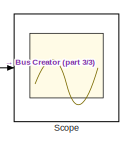
[diagram: root canvas - part 1/3, top right region]
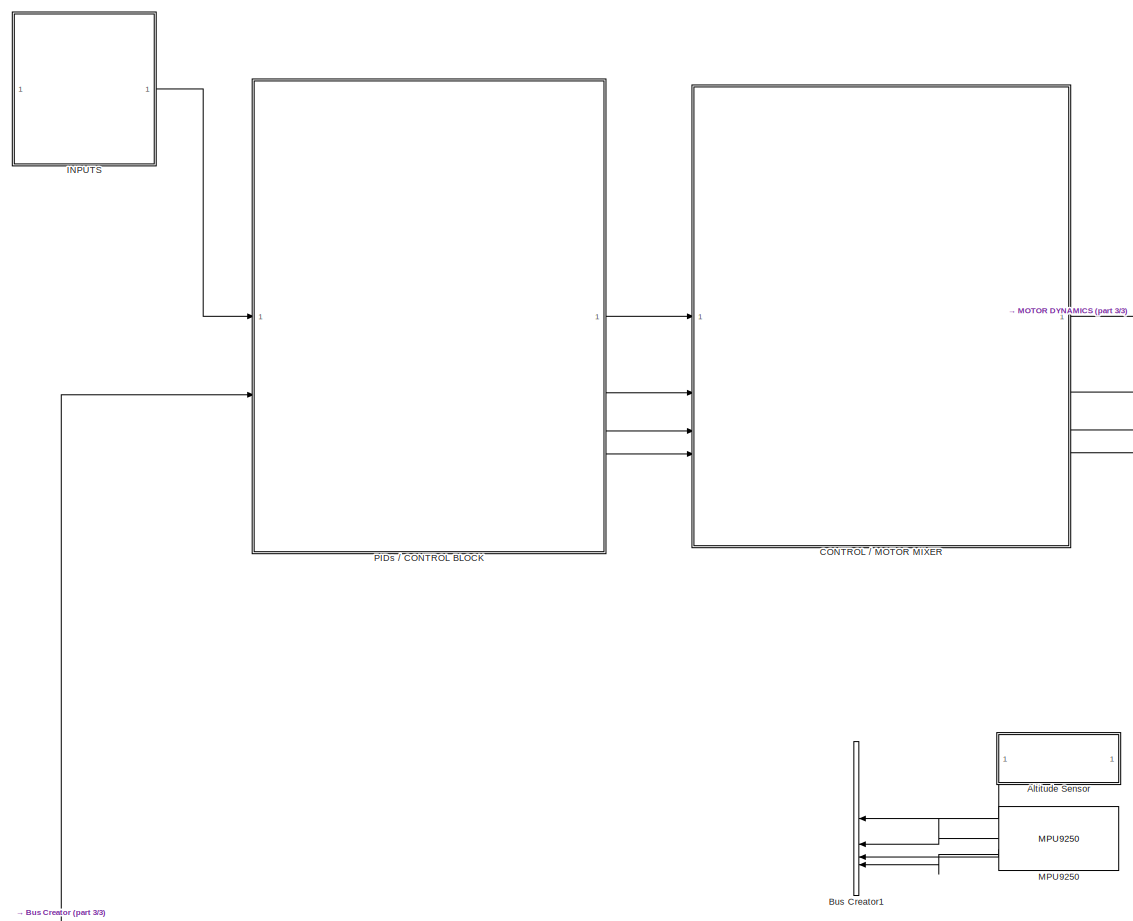
[diagram: root canvas - part 2/3, left side, full height]
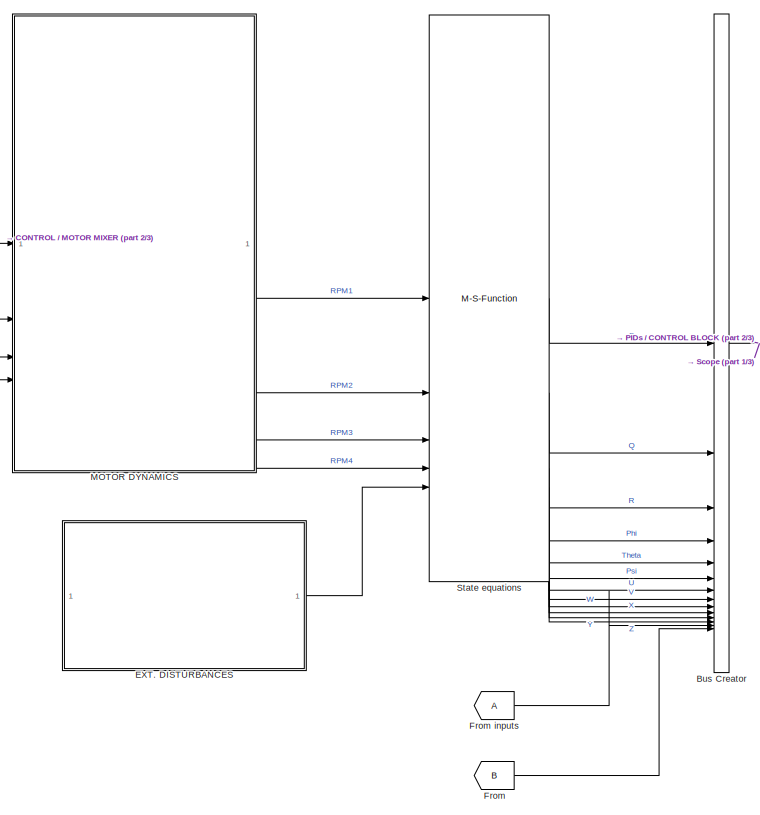
[diagram: root canvas - part 3/3, central region]
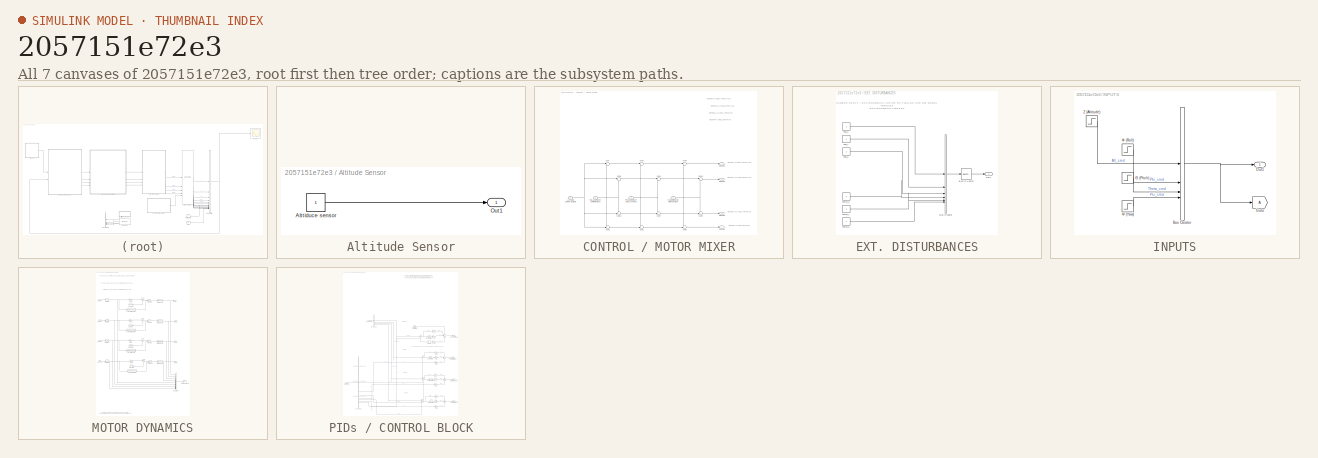
[diagram: thumbnail index - all 7 canvases of the model, root first then tree order]
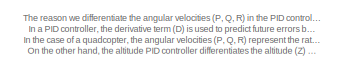
[diagram: PIDs / CONTROL BLOCK - part 1/4, top center region]
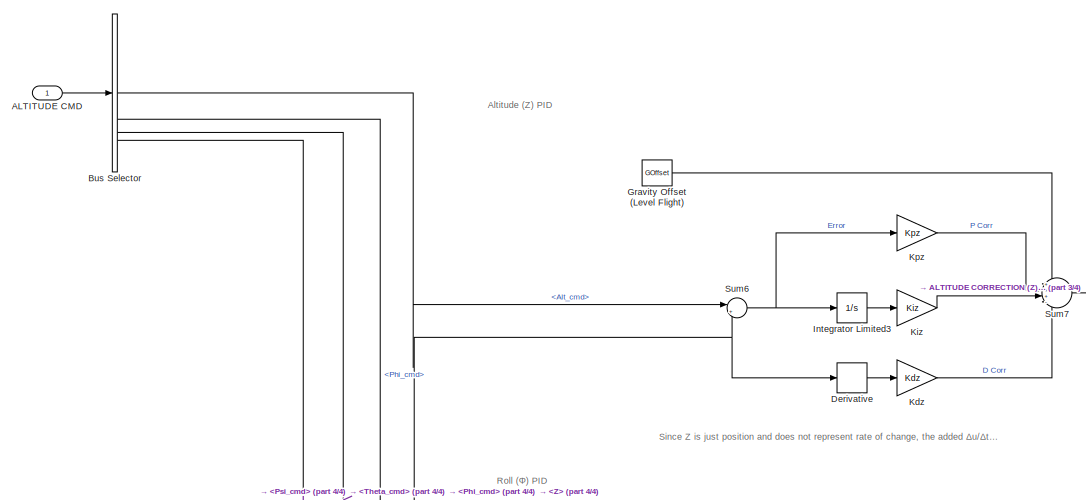
[diagram: PIDs / CONTROL BLOCK - part 2/4, central region]
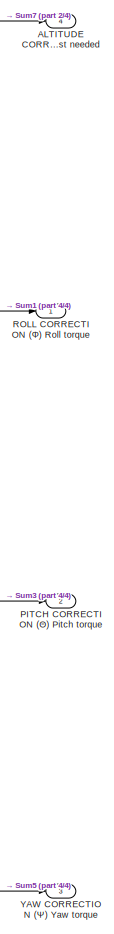
[diagram: PIDs / CONTROL BLOCK - part 3/4, bottom right region]
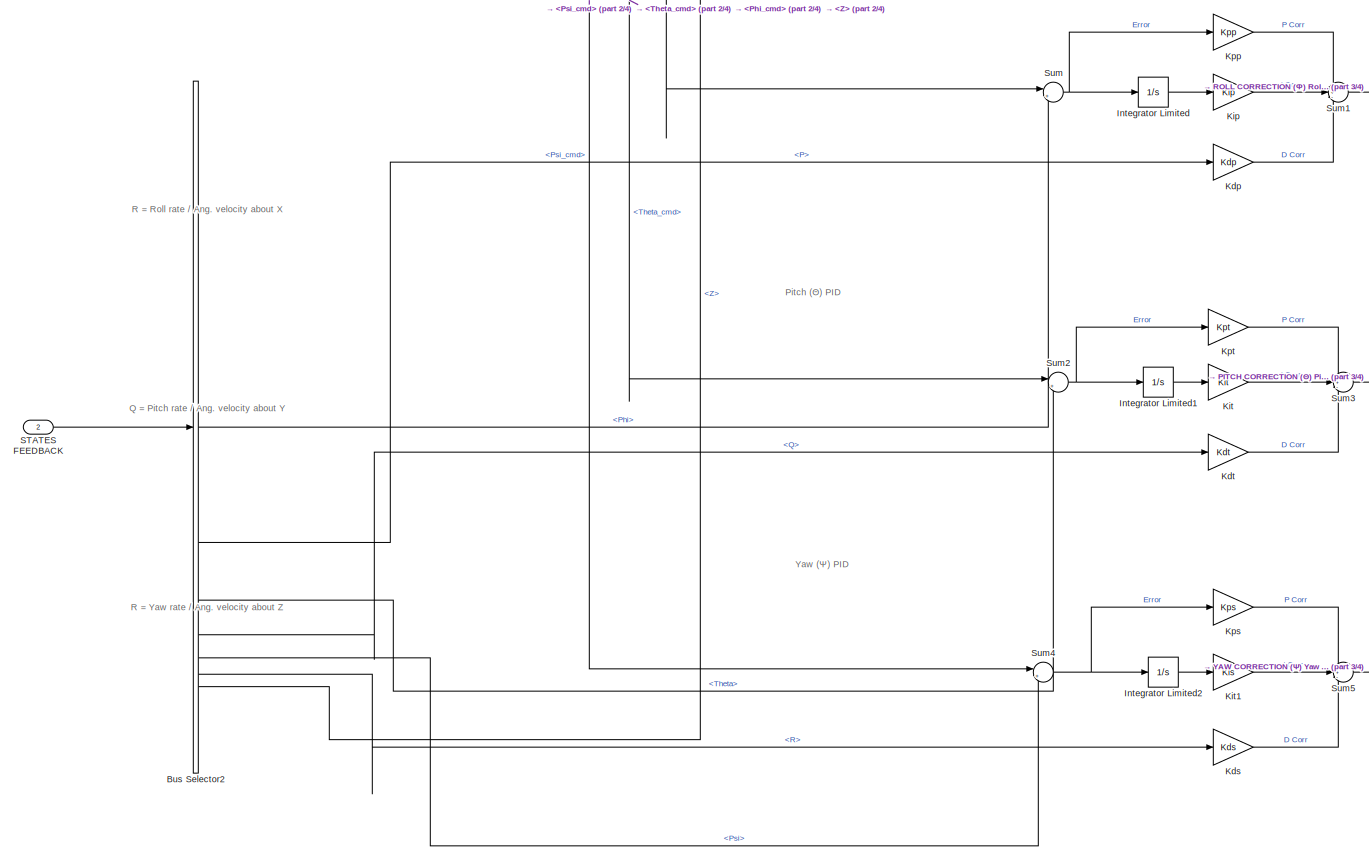
[diagram: PIDs / CONTROL BLOCK - part 4/4, full width, bottom band]
MODEL slx_2057151e72e3
KIND model
CONFIG AbsTol = auto
CONFIG EnableMultiTasking = off
CONFIG FixedStep = auto
CONFIG MaxStep = auto
CONFIG MinStep = auto
CONFIG RelTol = 1e-3
CONFIG SampleTimeConstraint = Unconstrained
CONFIG SolverName = VariableStepAuto
CONFIG StartTime = 0.0
CONFIG StopTime = 10.0
BLOCK [SubSystem] Altitude Sensor
BLOCK [Constant] Altitude Sensor/Alttiduce sensor
BLOCK [Outport] Altitude Sensor/Out1
BLOCK [BusCreator] Bus Creator
  DisplayOption = bar
  InheritFromInputs = on
  Inputs = 14
BLOCK [BusCreator] Bus Creator1
  DisplayOption = bar
  InheritFromInputs = on
  Inputs = 4
BLOCK [SubSystem] CONTROL // MOTOR MIXER
BLOCK [Inport] CONTROL // MOTOR MIXER/ALTITUDE CORRECTION (Z) Thrust CMD
  Port = 4
BLOCK [Outport] CONTROL // MOTOR MIXER/MOTOR1
BLOCK [Outport] CONTROL // MOTOR MIXER/MOTOR2
  Port = 2
BLOCK [Outport] CONTROL // MOTOR MIXER/MOTOR3
  Port = 3
BLOCK [Outport] CONTROL // MOTOR MIXER/MOTOR4
  Port = 4
BLOCK [Inport] CONTROL // MOTOR MIXER/PITCH CORRECTION (θ) Pitch Torque
  Port = 2
BLOCK [Inport] CONTROL // MOTOR MIXER/ROLL CORRECTION (Φ) Roll Torque
BLOCK [Sum] CONTROL // MOTOR MIXER/Sum
  Inputs = |+-
BLOCK [Sum] CONTROL // MOTOR MIXER/Sum1
  Inputs = |++
BLOCK [Sum] CONTROL // MOTOR MIXER/Sum10
  Inputs = ++|
BLOCK [Sum] CONTROL // MOTOR MIXER/Sum11
  Inputs = |++
BLOCK [Sum] CONTROL // MOTOR MIXER/Sum2
  Inputs = -+|
BLOCK [Sum] CONTROL // MOTOR MIXER/Sum3
  Inputs = -+|
BLOCK [Sum] CONTROL // MOTOR MIXER/Sum4
  Inputs = |++
BLOCK [Sum] CONTROL // MOTOR MIXER/Sum5
  Inputs = -+|
BLOCK [Sum] CONTROL // MOTOR MIXER/Sum6
  Inputs = |+-
BLOCK [Sum] CONTROL // MOTOR MIXER/Sum7
  Inputs = ++|
BLOCK [Sum] CONTROL // MOTOR MIXER/Sum8
  Inputs = |++
BLOCK [Sum] CONTROL // MOTOR MIXER/Sum9
  Inputs = -+|
BLOCK [Inport] CONTROL // MOTOR MIXER/YAW CORRECTION (ψ) Yaw Torque
  Port = 3
BLOCK [SubSystem] EXT. DISTURBANCES
BLOCK [BusCreator] EXT. DISTURBANCES/Bus Creator
  DisplayOption = bar
  InheritFromInputs = on
  Inputs = 6
BLOCK [BusToVector] EXT. DISTURBANCES/Bus to Vector
BLOCK [Constant] EXT. DISTURBANCES/Force_x
BLOCK [Constant] EXT. DISTURBANCES/Force_y
BLOCK [Constant] EXT. DISTURBANCES/Force_z
BLOCK [Outport] EXT. DISTURBANCES/Out1
BLOCK [Constant] EXT. DISTURBANCES/Tau_x
BLOCK [Constant] EXT. DISTURBANCES/Tau_y
BLOCK [Constant] EXT. DISTURBANCES/Tau_z
BLOCK [From] From
  GotoTag = B
  TagVisibility = global
BLOCK [From] From inputs
  IconDisplay = Tag and signal name
  TagVisibility = global
BLOCK [SubSystem] INPUTS
BLOCK [BusCreator] INPUTS/Bus Creator
  DisplayOption = bar
  InheritFromInputs = on
  Inputs = 4
BLOCK [Goto] INPUTS/Goto
  TagVisibility = global
BLOCK [Outport] INPUTS/Out1
BLOCK [Step] INPUTS/Z (Altitude)
  SampleTime = 0
BLOCK [Step] INPUTS/Θ (Pitch)
  SampleTime = 0
BLOCK [Step] INPUTS/Φ (Roll)
  SampleTime = 0
BLOCK [Step] INPUTS/Ψ (Yaw)
  SampleTime = 0
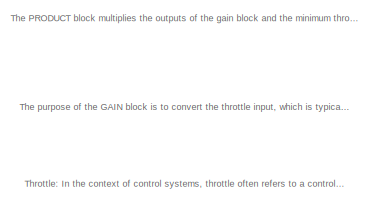
[diagram: MOTOR DYNAMICS - part 1/4, top left region]
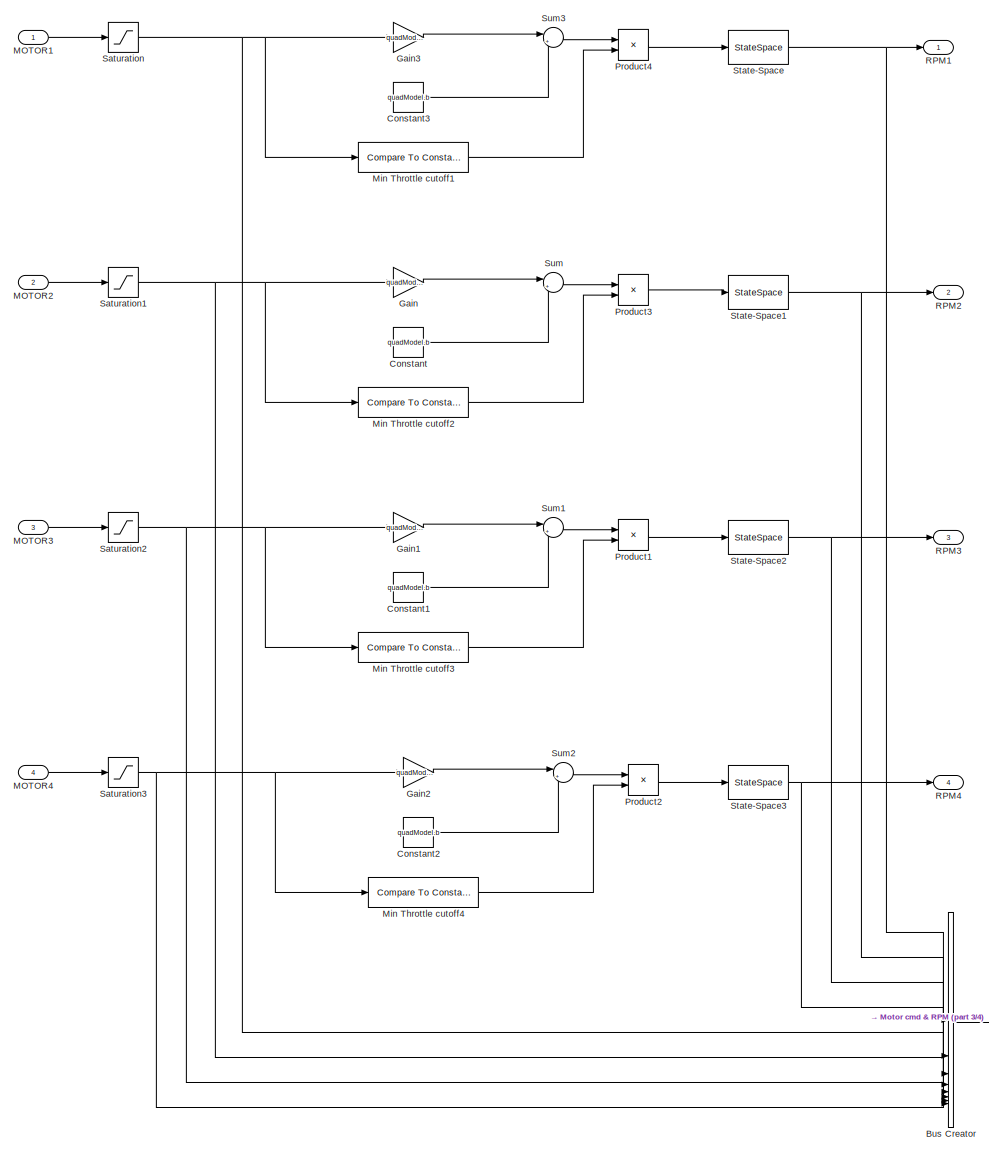
[diagram: MOTOR DYNAMICS - part 2/4, full width, middle band]
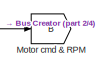
[diagram: MOTOR DYNAMICS - part 3/4, bottom right region]
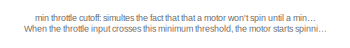
[diagram: MOTOR DYNAMICS - part 4/4, bottom left region]
BLOCK [SubSystem] MOTOR DYNAMICS
BLOCK [BusCreator] MOTOR DYNAMICS/Bus Creator
  DisplayOption = bar
  InheritFromInputs = on
  Inputs = 8
BLOCK [Constant] MOTOR DYNAMICS/Constant
  Value = quadModel.b
BLOCK [Constant] MOTOR DYNAMICS/Constant1
  Value = quadModel.b
BLOCK [Constant] MOTOR DYNAMICS/Constant2
  Value = quadModel.b
BLOCK [Constant] MOTOR DYNAMICS/Constant3
  Value = quadModel.b
BLOCK [Gain] MOTOR DYNAMICS/Gain
  Gain = quadModel.cr
BLOCK [Gain] MOTOR DYNAMICS/Gain1
  Gain = quadModel.cr
BLOCK [Gain] MOTOR DYNAMICS/Gain2
  Gain = quadModel.cr
BLOCK [Gain] MOTOR DYNAMICS/Gain3
  Gain = quadModel.cr
BLOCK [Inport] MOTOR DYNAMICS/MOTOR1
BLOCK [Inport] MOTOR DYNAMICS/MOTOR2
  Port = 2
BLOCK [Inport] MOTOR DYNAMICS/MOTOR3
  Port = 3
BLOCK [Inport] MOTOR DYNAMICS/MOTOR4
  Port = 4
BLOCK [Reference] MOTOR DYNAMICS/Min Throttle cutoff1  REF=simulink/Logic and Bit
Operations/Compare
To Constant
  SourceBlock = simulink/Logic and Bit\nOperations/Compare\nTo Constant
  SourceType = Compare To Constant
BLOCK [Reference] MOTOR DYNAMICS/Min Throttle cutoff2  REF=simulink/Logic and Bit
Operations/Compare
To Constant
  SourceBlock = simulink/Logic and Bit\nOperations/Compare\nTo Constant
  SourceType = Compare To Constant
BLOCK [Reference] MOTOR DYNAMICS/Min Throttle cutoff3  REF=simulink/Logic and Bit
Operations/Compare
To Constant
  SourceBlock = simulink/Logic and Bit\nOperations/Compare\nTo Constant
  SourceType = Compare To Constant
BLOCK [Reference] MOTOR DYNAMICS/Min Throttle cutoff4  REF=simulink/Logic and Bit
Operations/Compare
To Constant
  SourceBlock = simulink/Logic and Bit\nOperations/Compare\nTo Constant
  SourceType = Compare To Constant
BLOCK [Goto] MOTOR DYNAMICS/Motor cmd & RPM
  GotoTag = B
  TagVisibility = global
BLOCK [Product] MOTOR DYNAMICS/Product1
BLOCK [Product] MOTOR DYNAMICS/Product2
BLOCK [Product] MOTOR DYNAMICS/Product3
BLOCK [Product] MOTOR DYNAMICS/Product4
BLOCK [Outport] MOTOR DYNAMICS/RPM1
BLOCK [Outport] MOTOR DYNAMICS/RPM2
  Port = 2
BLOCK [Outport] MOTOR DYNAMICS/RPM3
  Port = 3
BLOCK [Outport] MOTOR DYNAMICS/RPM4
  Port = 4
BLOCK [Saturate] MOTOR DYNAMICS/Saturation
BLOCK [Saturate] MOTOR DYNAMICS/Saturation1
BLOCK [Saturate] MOTOR DYNAMICS/Saturation2
BLOCK [Saturate] MOTOR DYNAMICS/Saturation3
BLOCK [StateSpace] MOTOR DYNAMICS/State-Space
  InitialCondition = 0
BLOCK [StateSpace] MOTOR DYNAMICS/State-Space1
  InitialCondition = 0
BLOCK [StateSpace] MOTOR DYNAMICS/State-Space2
  InitialCondition = 0
BLOCK [StateSpace] MOTOR DYNAMICS/State-Space3
  InitialCondition = 0
BLOCK [Sum] MOTOR DYNAMICS/Sum
  Inputs = |++
  NameLocation = top
BLOCK [Sum] MOTOR DYNAMICS/Sum1
  Inputs = |++
  NameLocation = top
BLOCK [Sum] MOTOR DYNAMICS/Sum2
  Inputs = |++
  NameLocation = top
BLOCK [Sum] MOTOR DYNAMICS/Sum3
  Inputs = |++
  NameLocation = top
BLOCK [Reference] MPU9250  REF=bbblueSensorLib/MPU9250
  SourceBlock = bbblueSensorLib/MPU9250
  SourceType = beagleboneblue.bbblueMPU9250
BLOCK [SubSystem] PIDs // CONTROL BLOCK
BLOCK [Inport] PIDs // CONTROL BLOCK/ALTITUDE CMD
BLOCK [Outport] PIDs // CONTROL BLOCK/ALTITUDE CORRECTION (Ζ) Total thrust needed
  Port = 4
BLOCK [BusSelector] PIDs // CONTROL BLOCK/Bus Selector
  OutputSignals = Alt_cmd,Phi_cmd,Theta_cmd,Psi_cmd
BLOCK [BusSelector] PIDs // CONTROL BLOCK/Bus Selector2
  OutputSignals = Phi,P,Theta,Q,Psi,R,Z
BLOCK [Derivative] PIDs // CONTROL BLOCK/Derivative
BLOCK [Constant] PIDs // CONTROL BLOCK/Gravity Offset (Level Flight)
  Value = GOffset
BLOCK [Integrator] PIDs // CONTROL BLOCK/Integrator Limited
  LimitOutput = on
  LowerSaturationLimit = LSat
  UpperSaturationLimit = USat
BLOCK [Integrator] PIDs // CONTROL BLOCK/Integrator Limited1
  LimitOutput = on
  LowerSaturationLimit = 0
  UpperSaturationLimit = 1
BLOCK [Integrator] PIDs // CONTROL BLOCK/Integrator Limited2
  LimitOutput = on
  LowerSaturationLimit = LSat
  UpperSaturationLimit = USat
BLOCK [Integrator] PIDs // CONTROL BLOCK/Integrator Limited3
  LimitOutput = on
  LowerSaturationLimit = LSat
  UpperSaturationLimit = USat
BLOCK [Gain] PIDs // CONTROL BLOCK/Kdp
  Gain = Kdp
BLOCK [Gain] PIDs // CONTROL BLOCK/Kds
  Gain = Kds
BLOCK [Gain] PIDs // CONTROL BLOCK/Kdt
  Gain = Kdt
BLOCK [Gain] PIDs // CONTROL BLOCK/Kdz
  Gain = Kdz
BLOCK [Gain] PIDs // CONTROL BLOCK/Kip
  Gain = Kip
BLOCK [Gain] PIDs // CONTROL BLOCK/Kit
  Gain = Kit
BLOCK [Gain] PIDs // CONTROL BLOCK/Kit1
  Gain = Kis
BLOCK [Gain] PIDs // CONTROL BLOCK/Kiz
  Gain = Kiz
BLOCK [Gain] PIDs // CONTROL BLOCK/Kpp
  Gain = Kpp
BLOCK [Gain] PIDs // CONTROL BLOCK/Kps
  Gain = Kps
BLOCK [Gain] PIDs // CONTROL BLOCK/Kpt
  Gain = Kpt
BLOCK [Gain] PIDs // CONTROL BLOCK/Kpz
  Gain = Kpz
BLOCK [Outport] PIDs // CONTROL BLOCK/PITCH CORRECTION (Θ) Pitch torque
  Port = 2
BLOCK [Outport] PIDs // CONTROL BLOCK/ROLL CORRECTION (Φ) Roll torque
BLOCK [Inport] PIDs // CONTROL BLOCK/STATES FEEDBACK
  NameLocation = top
  Port = 2
BLOCK [Sum] PIDs // CONTROL BLOCK/Sum
  Inputs = |+-
BLOCK [Sum] PIDs // CONTROL BLOCK/Sum1
  Inputs = ++-
BLOCK [Sum] PIDs // CONTROL BLOCK/Sum2
  Inputs = |+-
BLOCK [Sum] PIDs // CONTROL BLOCK/Sum3
  Inputs = ++-
BLOCK [Sum] PIDs // CONTROL BLOCK/Sum4
  Inputs = |+-
BLOCK [Sum] PIDs // CONTROL BLOCK/Sum5
  Inputs = ++-
BLOCK [Sum] PIDs // CONTROL BLOCK/Sum6
  Inputs = |+-
BLOCK [Sum] PIDs // CONTROL BLOCK/Sum7
  Inputs = +++-
BLOCK [Outport] PIDs // CONTROL BLOCK/YAW CORRECTION (Ψ) Yaw torque
  Port = 3
BLOCK [Scope] Scope
  Floating = off
  NumInputPorts = 1
  ScopeSpecificationString = Simulink.scopes.TimeScopeBlockCfg('CurrentConfiguration', extmgr.ConfigurationSet(extmgr.Configuration('Core','General UI',true),extmgr.Configuration('Core','Source UI',true),extmgr.Configuration('Sources','WiredSimulink',true),extmgr.Configuration('Visuals','Time Domain',true),extmgr.Configuration('Tools','Plot Navigation',true),extmgr.Configuration('Tools','Measurements',true,'Version','2023b'))...<+19ch>
BLOCK [M-S-Function] State equations
  FunctionName = SirvDynamicsSFunction
  Parameters = quadModel, IC
ANNOTATION CONTROL // MOTOR MIXER: MOTOR1 = ALT. - ROLL + PITCH + YAW
ANNOTATION CONTROL // MOTOR MIXER: MOTOR2 = ALT. + ROLL - PITCH + YAW
ANNOTATION CONTROL // MOTOR MIXER: MOTOR3 = ALT. + ROLL + PITCH - YAW
ANNOTATION CONTROL // MOTOR MIXER: MOTOR4 = ALT. - ROLL - PITCH - YAW
ANNOTATION EXT. DISTURBANCES: NUMBER OF EXT. / ENVIRONMENTAL INPUTS THAT WILL GO INTO THE MODEL -TORQUES -ENVIRONMENTAL FORCES
ANNOTATION MOTOR DYNAMICS: The PRODUCT block multiplies the outputs of the gain block and the minimum throttle cutoff block. If the throttle input is greater than or equal to the throttle cutoff (minThr), the output equals the linearly scaled RPM for the given throttle input. Otherwise, the output is zero
ANNOTATION MOTOR DYNAMICS: Throttle : In the context of control systems, throttle often refers to a control input that determines the amount of power or thrust produced by the engine
ANNOTATION MOTOR DYNAMICS: min throttle cutoff: simultes the fact that that a motor won't spin until a minimum throttle point is reached. When the throttle input crosses this minimum threshold, the motor starts spinning, causing a sudden jump (jump discontinuity) in the RPM from zero to some positive value. This is an important aspect of accurately modeling the motor’s behavior. Ignoring this discontinuity could lead to unr...<+151ch>
ANNOTATION MOTOR DYNAMICS: The purpose of the GAIN block is to convert the throttle input, which is typically a dimensionless value ranging from 0 to 1, into an actual RPM value that the motors can understand
ANNOTATION PIDs // CONTROL BLOCK: The reason we differentiate the angular velocities (P, Q, R) in the PID controllers for roll, pitch, and yaw is related to the nature of these control systems. In a PID controller, the derivative term (D) is used to predict future errors based on the current rate of change of the error. This helps to apply corrections before the system can deviate significantly from the setpoint, and it adds a “da...<+854ch>
ANNOTATION PIDs // CONTROL BLOCK: Altitude (Z) PID
ANNOTATION PIDs // CONTROL BLOCK: Pitch (Θ) PID
ANNOTATION PIDs // CONTROL BLOCK: Q = Pitch rate / Ang. velocity about Y
ANNOTATION PIDs // CONTROL BLOCK: R = Roll rate / Ang. velocity about X
ANNOTATION PIDs // CONTROL BLOCK: R = Yaw rate / Ang. velocity about Z
ANNOTATION PIDs // CONTROL BLOCK: Roll (Φ) PID
ANNOTATION PIDs // CONTROL BLOCK: Since Z is just position and does not represent rate of change, the added Δu/Δt is to turn Z into linear velocity, i.e. linear rate of change
ANNOTATION PIDs // CONTROL BLOCK: Yaw (Ψ) PID
LINE Altitude Sensor/Alttiduce sensor:1 -> Altitude Sensor/Out1:1
LINE Altitude Sensor:1 -> Bus Creator1:1
NET Bus Creator:1 -> PIDs // CONTROL BLOCK:2, Scope:1
NET CONTROL // MOTOR MIXER/ALTITUDE CORRECTION (Z) Thrust CMD:1 -> CONTROL // MOTOR MIXER/Sum10:2, CONTROL // MOTOR MIXER/Sum3:2, CONTROL // MOTOR MIXER/Sum8:1, CONTROL // MOTOR MIXER/Sum:1
NET CONTROL // MOTOR MIXER/PITCH CORRECTION (θ) Pitch Torque:1 -> CONTROL // MOTOR MIXER/Sum1:2, CONTROL // MOTOR MIXER/Sum2:1, CONTROL // MOTOR MIXER/Sum6:2, CONTROL // MOTOR MIXER/Sum7:1
NET CONTROL // MOTOR MIXER/ROLL CORRECTION (Φ) Roll Torque:1 -> CONTROL // MOTOR MIXER/Sum10:1, CONTROL // MOTOR MIXER/Sum3:1, CONTROL // MOTOR MIXER/Sum8:2, CONTROL // MOTOR MIXER/Sum:2
LINE CONTROL // MOTOR MIXER/Sum10:1 -> CONTROL // MOTOR MIXER/Sum7:2
LINE CONTROL // MOTOR MIXER/Sum11:1 -> CONTROL // MOTOR MIXER/MOTOR2:1
LINE CONTROL // MOTOR MIXER/Sum1:1 -> CONTROL // MOTOR MIXER/Sum4:1
LINE CONTROL // MOTOR MIXER/Sum2:1 -> CONTROL // MOTOR MIXER/Sum5:2
LINE CONTROL // MOTOR MIXER/Sum3:1 -> CONTROL // MOTOR MIXER/Sum2:2
LINE CONTROL // MOTOR MIXER/Sum4:1 -> CONTROL // MOTOR MIXER/MOTOR1:1
LINE CONTROL // MOTOR MIXER/Sum5:1 -> CONTROL // MOTOR MIXER/MOTOR4:1
LINE CONTROL // MOTOR MIXER/Sum6:1 -> CONTROL // MOTOR MIXER/Sum11:1
LINE CONTROL // MOTOR MIXER/Sum7:1 -> CONTROL // MOTOR MIXER/Sum9:2
LINE CONTROL // MOTOR MIXER/Sum8:1 -> CONTROL // MOTOR MIXER/Sum6:1
LINE CONTROL // MOTOR MIXER/Sum9:1 -> CONTROL // MOTOR MIXER/MOTOR3:1
LINE CONTROL // MOTOR MIXER/Sum:1 -> CONTROL // MOTOR MIXER/Sum1:1
NET CONTROL // MOTOR MIXER/YAW CORRECTION (ψ) Yaw Torque:1 -> CONTROL // MOTOR MIXER/Sum11:2, CONTROL // MOTOR MIXER/Sum4:2, CONTROL // MOTOR MIXER/Sum5:1, CONTROL // MOTOR MIXER/Sum9:1
LINE CONTROL // MOTOR MIXER:1 -> MOTOR DYNAMICS:1
LINE CONTROL // MOTOR MIXER:2 -> MOTOR DYNAMICS:2
LINE CONTROL // MOTOR MIXER:3 -> MOTOR DYNAMICS:3
LINE CONTROL // MOTOR MIXER:4 -> MOTOR DYNAMICS:4
LINE EXT. DISTURBANCES/Bus Creator:1 -> EXT. DISTURBANCES/Bus to Vector:1
LINE EXT. DISTURBANCES/Bus to Vector:1 -> EXT. DISTURBANCES/Out1:1
LINE EXT. DISTURBANCES/Force_x:1 -> EXT. DISTURBANCES/Bus Creator:4
LINE EXT. DISTURBANCES/Force_y:1 -> EXT. DISTURBANCES/Bus Creator:5
LINE EXT. DISTURBANCES/Force_z:1 -> EXT. DISTURBANCES/Bus Creator:6
LINE EXT. DISTURBANCES/Tau_x:1 -> EXT. DISTURBANCES/Bus Creator:1
LINE EXT. DISTURBANCES/Tau_y:1 -> EXT. DISTURBANCES/Bus Creator:2
LINE EXT. DISTURBANCES/Tau_z:1 -> EXT. DISTURBANCES/Bus Creator:3
LINE EXT. DISTURBANCES:1 -> State equations:5
LINE From inputs:1 -> Bus Creator:13
LINE From:1 -> Bus Creator:14
NET INPUTS/Bus Creator:1 -> INPUTS/Goto:1, INPUTS/Out1:1
LINE INPUTS/Z (Altitude):1 -> INPUTS/Bus Creator:1
LINE INPUTS/Θ (Pitch):1 -> INPUTS/Bus Creator:3
LINE INPUTS/Φ (Roll):1 -> INPUTS/Bus Creator:2
LINE INPUTS/Ψ (Yaw):1 -> INPUTS/Bus Creator:4
LINE INPUTS:1 -> PIDs // CONTROL BLOCK:1
LINE MOTOR DYNAMICS/Bus Creator:1 -> MOTOR DYNAMICS/Motor cmd & RPM:1
LINE MOTOR DYNAMICS/Constant1:1 -> MOTOR DYNAMICS/Sum1:2
LINE MOTOR DYNAMICS/Constant2:1 -> MOTOR DYNAMICS/Sum2:2
LINE MOTOR DYNAMICS/Constant3:1 -> MOTOR DYNAMICS/Sum3:2
LINE MOTOR DYNAMICS/Constant:1 -> MOTOR DYNAMICS/Sum:2
LINE MOTOR DYNAMICS/Gain1:1 -> MOTOR DYNAMICS/Sum1:1
LINE MOTOR DYNAMICS/Gain2:1 -> MOTOR DYNAMICS/Sum2:1
LINE MOTOR DYNAMICS/Gain3:1 -> MOTOR DYNAMICS/Sum3:1
LINE MOTOR DYNAMICS/Gain:1 -> MOTOR DYNAMICS/Sum:1
LINE MOTOR DYNAMICS/MOTOR1:1 -> MOTOR DYNAMICS/Saturation:1
LINE MOTOR DYNAMICS/MOTOR2:1 -> MOTOR DYNAMICS/Saturation1:1
LINE MOTOR DYNAMICS/MOTOR3:1 -> MOTOR DYNAMICS/Saturation2:1
LINE MOTOR DYNAMICS/MOTOR4:1 -> MOTOR DYNAMICS/Saturation3:1
LINE MOTOR DYNAMICS/Min Throttle cutoff1:1 -> MOTOR DYNAMICS/Product4:2
LINE MOTOR DYNAMICS/Min Throttle cutoff2:1 -> MOTOR DYNAMICS/Product3:2
LINE MOTOR DYNAMICS/Min Throttle cutoff3:1 -> MOTOR DYNAMICS/Product1:2
LINE MOTOR DYNAMICS/Min Throttle cutoff4:1 -> MOTOR DYNAMICS/Product2:2
LINE MOTOR DYNAMICS/Product1:1 -> MOTOR DYNAMICS/State-Space2:1
LINE MOTOR DYNAMICS/Product2:1 -> MOTOR DYNAMICS/State-Space3:1
LINE MOTOR DYNAMICS/Product3:1 -> MOTOR DYNAMICS/State-Space1:1
LINE MOTOR DYNAMICS/Product4:1 -> MOTOR DYNAMICS/State-Space:1
NET MOTOR DYNAMICS/Saturation1:1 -> MOTOR DYNAMICS/Bus Creator:6, MOTOR DYNAMICS/Gain:1, MOTOR DYNAMICS/Min Throttle cutoff2:1
NET MOTOR DYNAMICS/Saturation2:1 -> MOTOR DYNAMICS/Bus Creator:7, MOTOR DYNAMICS/Gain1:1, MOTOR DYNAMICS/Min Throttle cutoff3:1
NET MOTOR DYNAMICS/Saturation3:1 -> MOTOR DYNAMICS/Bus Creator:8, MOTOR DYNAMICS/Gain2:1, MOTOR DYNAMICS/Min Throttle cutoff4:1
NET MOTOR DYNAMICS/Saturation:1 -> MOTOR DYNAMICS/Bus Creator:5, MOTOR DYNAMICS/Gain3:1, MOTOR DYNAMICS/Min Throttle cutoff1:1
NET MOTOR DYNAMICS/State-Space1:1 -> MOTOR DYNAMICS/Bus Creator:2, MOTOR DYNAMICS/RPM2:1
NET MOTOR DYNAMICS/State-Space2:1 -> MOTOR DYNAMICS/Bus Creator:3, MOTOR DYNAMICS/RPM3:1
NET MOTOR DYNAMICS/State-Space3:1 -> MOTOR DYNAMICS/Bus Creator:4, MOTOR DYNAMICS/RPM4:1
NET MOTOR DYNAMICS/State-Space:1 -> MOTOR DYNAMICS/Bus Creator:1, MOTOR DYNAMICS/RPM1:1
LINE MOTOR DYNAMICS/Sum1:1 -> MOTOR DYNAMICS/Product1:1
LINE MOTOR DYNAMICS/Sum2:1 -> MOTOR DYNAMICS/Product2:1
LINE MOTOR DYNAMICS/Sum3:1 -> MOTOR DYNAMICS/Product4:1
LINE MOTOR DYNAMICS/Sum:1 -> MOTOR DYNAMICS/Product3:1
LINE MOTOR DYNAMICS:1 -> State equations:1
LINE MOTOR DYNAMICS:2 -> State equations:2
LINE MOTOR DYNAMICS:3 -> State equations:3
LINE MOTOR DYNAMICS:4 -> State equations:4
LINE MPU9250:1 -> Bus Creator1:2
LINE MPU9250:2 -> Bus Creator1:3
LINE MPU9250:3 -> Bus Creator1:4
LINE PIDs // CONTROL BLOCK/ALTITUDE CMD:1 -> PIDs // CONTROL BLOCK/Bus Selector:1
LINE PIDs // CONTROL BLOCK/Bus Selector2:1 -> PIDs // CONTROL BLOCK/Sum:2
LINE PIDs // CONTROL BLOCK/Bus Selector2:2 -> PIDs // CONTROL BLOCK/Kdp:1
LINE PIDs // CONTROL BLOCK/Bus Selector2:3 -> PIDs // CONTROL BLOCK/Sum2:2
LINE PIDs // CONTROL BLOCK/Bus Selector2:4 -> PIDs // CONTROL BLOCK/Kdt:1
LINE PIDs // CONTROL BLOCK/Bus Selector2:5 -> PIDs // CONTROL BLOCK/Sum4:2
LINE PIDs // CONTROL BLOCK/Bus Selector2:6 -> PIDs // CONTROL BLOCK/Kds:1
NET PIDs // CONTROL BLOCK/Bus Selector2:7 -> PIDs // CONTROL BLOCK/Derivative:1, PIDs // CONTROL BLOCK/Sum6:2
LINE PIDs // CONTROL BLOCK/Bus Selector:1 -> PIDs // CONTROL BLOCK/Sum6:1
LINE PIDs // CONTROL BLOCK/Bus Selector:2 -> PIDs // CONTROL BLOCK/Sum:1
LINE PIDs // CONTROL BLOCK/Bus Selector:3 -> PIDs // CONTROL BLOCK/Sum2:1
LINE PIDs // CONTROL BLOCK/Bus Selector:4 -> PIDs // CONTROL BLOCK/Sum4:1
LINE PIDs // CONTROL BLOCK/Derivative:1 -> PIDs // CONTROL BLOCK/Kdz:1
LINE PIDs // CONTROL BLOCK/Gravity Offset (Level Flight):1 -> PIDs // CONTROL BLOCK/Sum7:1
LINE PIDs // CONTROL BLOCK/Integrator Limited1:1 -> PIDs // CONTROL BLOCK/Kit:1
LINE PIDs // CONTROL BLOCK/Integrator Limited2:1 -> PIDs // CONTROL BLOCK/Kit1:1
LINE PIDs // CONTROL BLOCK/Integrator Limited3:1 -> PIDs // CONTROL BLOCK/Kiz:1
LINE PIDs // CONTROL BLOCK/Integrator Limited:1 -> PIDs // CONTROL BLOCK/Kip:1
LINE PIDs // CONTROL BLOCK/Kdp:1 -> PIDs // CONTROL BLOCK/Sum1:3
LINE PIDs // CONTROL BLOCK/Kds:1 -> PIDs // CONTROL BLOCK/Sum5:3
LINE PIDs // CONTROL BLOCK/Kdt:1 -> PIDs // CONTROL BLOCK/Sum3:3
LINE PIDs // CONTROL BLOCK/Kdz:1 -> PIDs // CONTROL BLOCK/Sum7:4
LINE PIDs // CONTROL BLOCK/Kip:1 -> PIDs // CONTROL BLOCK/Sum1:2
LINE PIDs // CONTROL BLOCK/Kit1:1 -> PIDs // CONTROL BLOCK/Sum5:2
LINE PIDs // CONTROL BLOCK/Kit:1 -> PIDs // CONTROL BLOCK/Sum3:2
LINE PIDs // CONTROL BLOCK/Kiz:1 -> PIDs // CONTROL BLOCK/Sum7:3
LINE PIDs // CONTROL BLOCK/Kpp:1 -> PIDs // CONTROL BLOCK/Sum1:1
LINE PIDs // CONTROL BLOCK/Kps:1 -> PIDs // CONTROL BLOCK/Sum5:1
LINE PIDs // CONTROL BLOCK/Kpt:1 -> PIDs // CONTROL BLOCK/Sum3:1
LINE PIDs // CONTROL BLOCK/Kpz:1 -> PIDs // CONTROL BLOCK/Sum7:2
LINE PIDs // CONTROL BLOCK/STATES FEEDBACK:1 -> PIDs // CONTROL BLOCK/Bus Selector2:1
LINE PIDs // CONTROL BLOCK/Sum1:1 -> PIDs // CONTROL BLOCK/ROLL CORRECTION (Φ) Roll torque:1
NET PIDs // CONTROL BLOCK/Sum2:1 -> PIDs // CONTROL BLOCK/Integrator Limited1:1, PIDs // CONTROL BLOCK/Kpt:1
LINE PIDs // CONTROL BLOCK/Sum3:1 -> PIDs // CONTROL BLOCK/PITCH CORRECTION (Θ) Pitch torque:1
NET PIDs // CONTROL BLOCK/Sum4:1 -> PIDs // CONTROL BLOCK/Integrator Limited2:1, PIDs // CONTROL BLOCK/Kps:1
LINE PIDs // CONTROL BLOCK/Sum5:1 -> PIDs // CONTROL BLOCK/YAW CORRECTION (Ψ) Yaw torque:1
NET PIDs // CONTROL BLOCK/Sum6:1 -> PIDs // CONTROL BLOCK/Integrator Limited3:1, PIDs // CONTROL BLOCK/Kpz:1
LINE PIDs // CONTROL BLOCK/Sum7:1 -> PIDs // CONTROL BLOCK/ALTITUDE CORRECTION (Ζ) Total thrust needed:1
NET PIDs // CONTROL BLOCK/Sum:1 -> PIDs // CONTROL BLOCK/Integrator Limited:1, PIDs // CONTROL BLOCK/Kpp:1
LINE PIDs // CONTROL BLOCK:1 -> CONTROL // MOTOR MIXER:1
LINE PIDs // CONTROL BLOCK:2 -> CONTROL // MOTOR MIXER:2
LINE PIDs // CONTROL BLOCK:3 -> CONTROL // MOTOR MIXER:3
LINE PIDs // CONTROL BLOCK:4 -> CONTROL // MOTOR MIXER:4
LINE State equations:1 -> Bus Creator:1
LINE State equations:10 -> Bus Creator:10
LINE State equations:11 -> Bus Creator:11
LINE State equations:12 -> Bus Creator:12
LINE State equations:2 -> Bus Creator:2
LINE State equations:3 -> Bus Creator:3
LINE State equations:4 -> Bus Creator:4
LINE State equations:5 -> Bus Creator:5
LINE State equations:6 -> Bus Creator:6
LINE State equations:7 -> Bus Creator:7
LINE State equations:8 -> Bus Creator:8
LINE State equations:9 -> Bus Creator:9
note: NET lines group one-source signal fan-out (src -> all destinations, sorted); 1:1 wires keep LINE
